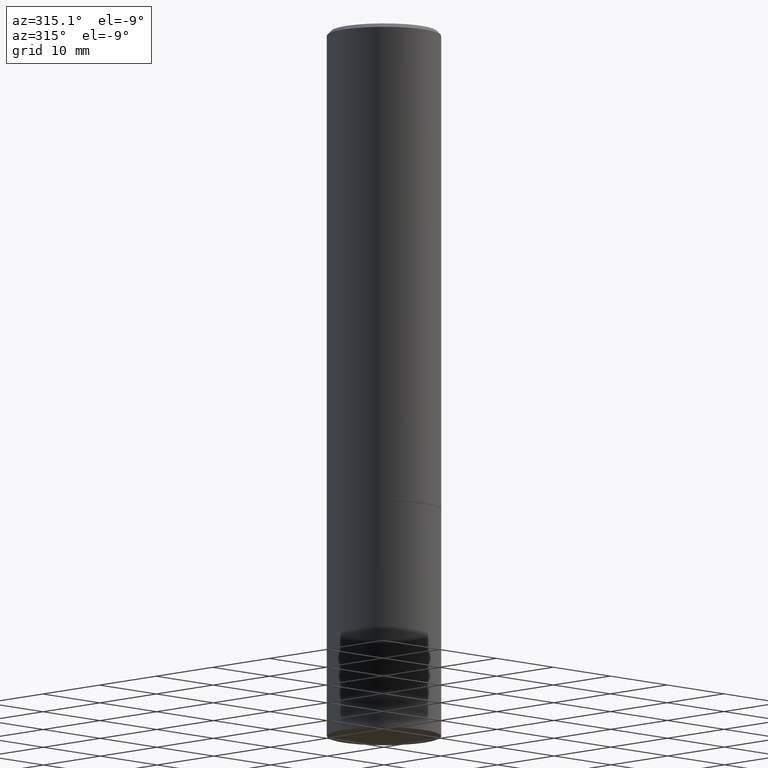
[diagram: clean part render]
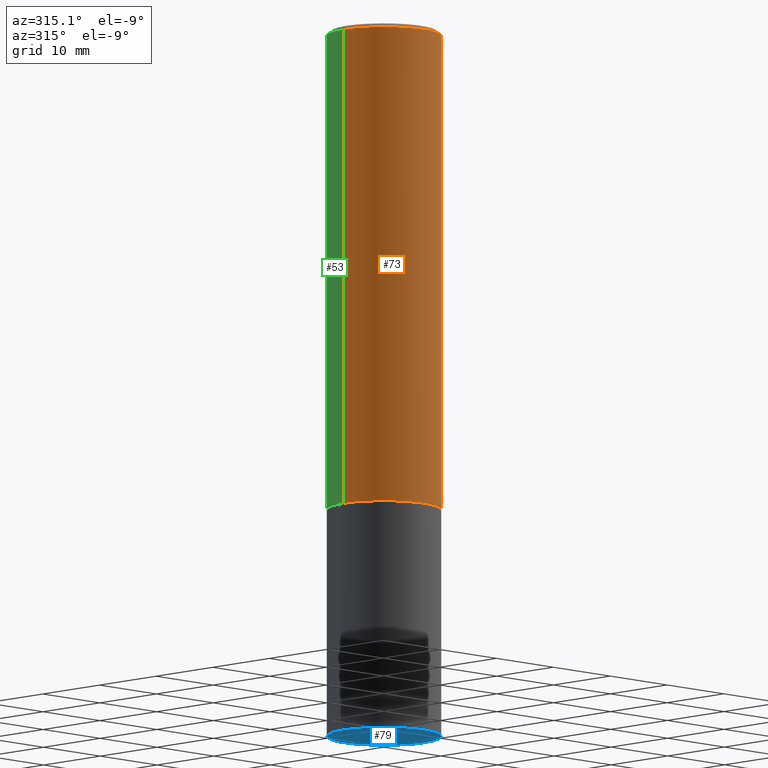
[diagram: same view with three faces highlighted in distinct colors, each labeled with its STEP entity id]
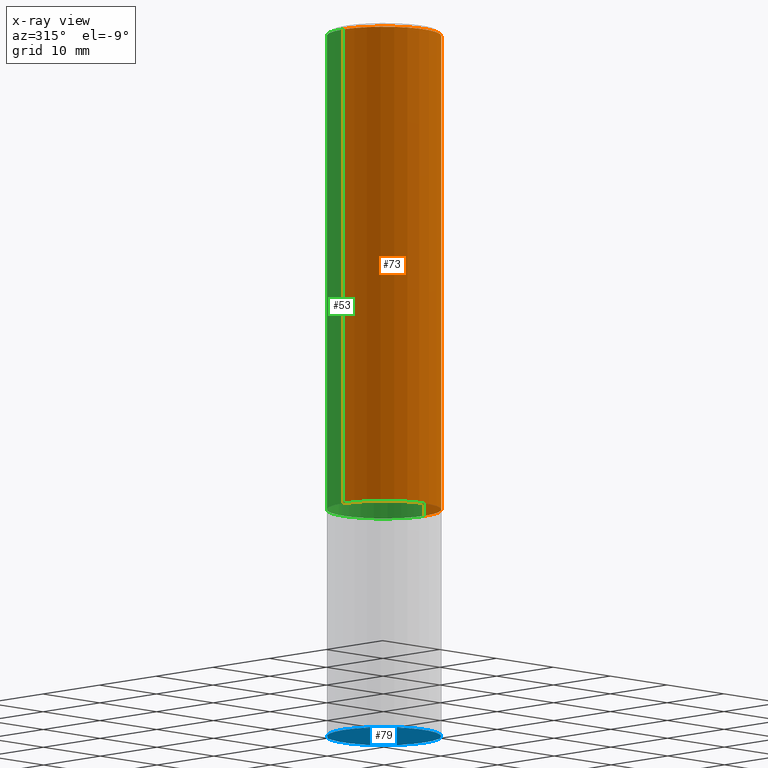
[diagram: x-ray of the same camera — body ghosted, the three highlighted faces saturated]
A machine part, auxiliary view with three faces highlighted in distinct colors.
The next image is the same camera in x-ray (body ghosted, the three faces saturated) — at least one of them is partly hidden behind the body in this view.
Their STEP definitions:

[orange] entity #73 — the highlighted cylindrical surface (partial cylindrical patch) has radius 7.1437 mm, axis along (-0, 0, 1).
#3 = DIRECTION ( 'NONE',  ( 1.000000000000000000, -6.982962677686266711E-15, 0.000000000000000000 ) ) ;
#11 = CARTESIAN_POINT ( 'NONE',  ( 5.805542945883512693E-29, -8.288776698413625533E-15, -2.373999999999999222 ) ) ;
#32 = AXIS2_PLACEMENT_3D ( 'NONE', #80, #86, #180 ) ;
#41 = DIRECTION ( 'NONE',  ( 1.000000000000000000, -6.982962677686269866E-15, 0.000000000000000000 ) ) ;
#52 = CIRCLE ( 'NONE', #159, 0.2812500000000000000 ) ;
#73 = ADVANCED_FACE ( 'NONE', ( #115 ), #264, .T. ) ;
#78 = EDGE_CURVE ( 'NONE', #309, #107, #242, .T. ) ;
#80 = CARTESIAN_POINT ( 'NONE',  ( 0.000000000000000000, 0.000000000000000000, 0.000000000000000000 ) ) ;
#82 = VECTOR ( 'NONE', #353, 39.37007874015748143 ) ;
#86 = DIRECTION ( 'NONE',  ( -2.445468806185136597E-29, 3.491481338843145583E-15, 1.000000000000000000 ) ) ;
#93 = CARTESIAN_POINT ( 'NONE',  ( 0.2812499999999998335, -1.963958253099261329E-15, 1.371424718192606171E-29 ) ) ;
#94 = CARTESIAN_POINT ( 'NONE',  ( -0.2812499999999996669, 1.894128626322397242E-15, -0.02000000000000005940 ) ) ;
#107 = VERTEX_POINT ( 'NONE', #336 ) ;
#114 = CIRCLE ( 'NONE', #120, 0.2812499999999996669 ) ;
#115 = FACE_OUTER_BOUND ( 'NONE', #163, .T. ) ;
#120 = AXIS2_PLACEMENT_3D ( 'NONE', #304, #239, #3 ) ;
#148 = LINE ( 'NONE', #273, #82 ) ;
#159 = AXIS2_PLACEMENT_3D ( 'NONE', #11, #210, #41 ) ;
#161 = EDGE_CURVE ( 'NONE', #267, #309, #52, .T. ) ;
#163 = EDGE_LOOP ( 'NONE', ( #272, #361, #255, #348 ) ) ;
#164 = EDGE_CURVE ( 'NONE', #267, #165, #148, .T. ) ;
#165 = VERTEX_POINT ( 'NONE', #94 ) ;
#180 = DIRECTION ( 'NONE',  ( 1.000000000000000000, -6.982962677686266711E-15, 4.876176775795935793E-29 ) ) ;
#210 = DIRECTION ( 'NONE',  ( -2.445468806185136597E-29, 3.491481338843145583E-15, 1.000000000000000000 ) ) ;
#217 = DIRECTION ( 'NONE',  ( -2.445468806185136877E-29, 3.491481338843145188E-15, 1.000000000000000000 ) ) ;
#230 = EDGE_CURVE ( 'NONE', #165, #107, #114, .T. ) ;
#239 = DIRECTION ( 'NONE',  ( -2.445468806185136597E-29, 3.491481338843145583E-15, 1.000000000000000000 ) ) ;
#242 = LINE ( 'NONE', #93, #279 ) ;
#255 = ORIENTED_EDGE ( 'NONE', *, *, #78, .T. ) ;
#264 = CYLINDRICAL_SURFACE ( 'NONE', #32, 0.2812499999999998335 ) ;
#267 = VERTEX_POINT ( 'NONE', #366 ) ;
#272 = ORIENTED_EDGE ( 'NONE', *, *, #164, .F. ) ;
#273 = CARTESIAN_POINT ( 'NONE',  ( -0.2812499999999998335, 1.998401444325280589E-15, -1.383450494134191428E-29 ) ) ;
#279 = VECTOR ( 'NONE', #217, 39.37007874015748143 ) ;
#304 = CARTESIAN_POINT ( 'NONE',  ( 4.890937612370288047E-31, -6.982962677686311331E-17, -0.02000000000000005940 ) ) ;
#309 = VERTEX_POINT ( 'NONE', #320 ) ;
#320 = CARTESIAN_POINT ( 'NONE',  ( 0.2812500000000000000, -1.025273495151288883E-14, -2.373999999999999222 ) ) ;
#336 = CARTESIAN_POINT ( 'NONE',  ( 0.2812499999999996669, -1.999344688650103789E-15, -0.02000000000000005940 ) ) ;
#348 = ORIENTED_EDGE ( 'NONE', *, *, #230, .F. ) ;
#353 = DIRECTION ( 'NONE',  ( -2.445468806185136877E-29, 3.491481338843145188E-15, 1.000000000000000000 ) ) ;
#361 = ORIENTED_EDGE ( 'NONE', *, *, #161, .T. ) ;
#366 = CARTESIAN_POINT ( 'NONE',  ( -0.2812500000000000000, -2.180901718269959487E-15, -2.373999999999999222 ) ) ;

[blue] entity #79 — the highlighted planar face has unit normal (0, -0, -1).
#51 = ORIENTED_EDGE ( 'NONE', *, *, #212, .F. ) ;
#79 = ADVANCED_FACE ( 'NONE', ( #121 ), #359, .T. ) ;
#84 = CARTESIAN_POINT ( 'NONE',  ( 8.559140821647976968E-29, -1.222018468595100934E-14, -3.500000000000000000 ) ) ;
#87 = DIRECTION ( 'NONE',  ( 1.000000000000000000, -6.982962677686269866E-15, 0.000000000000000000 ) ) ;
#97 = DIRECTION ( 'NONE',  ( -1.000000000000000000, 6.982962677686265922E-15, -4.876176775795935793E-29 ) ) ;
#101 = AXIS2_PLACEMENT_3D ( 'NONE', #351, #214, #330 ) ;
#121 = FACE_OUTER_BOUND ( 'NONE', #313, .T. ) ;
#194 = VERTEX_POINT ( 'NONE', #305 ) ;
#212 = EDGE_CURVE ( 'NONE', #283, #194, #286, .T. ) ;
#214 = DIRECTION ( 'NONE',  ( -2.445468806185136597E-29, 3.491481338843145583E-15, 1.000000000000000000 ) ) ;
#234 = DIRECTION ( 'NONE',  ( -2.445468806185136597E-29, 3.491481338843145583E-15, 1.000000000000000000 ) ) ;
#244 = AXIS2_PLACEMENT_3D ( 'NONE', #84, #234, #87 ) ;
#248 = ORIENTED_EDGE ( 'NONE', *, *, #316, .F. ) ;
#266 = DIRECTION ( 'NONE',  ( 2.438088387897960049E-29, -3.491481338843145188E-15, -1.000000000000000000 ) ) ;
#282 = AXIS2_PLACEMENT_3D ( 'NONE', #297, #266, #97 ) ;
#283 = VERTEX_POINT ( 'NONE', #339 ) ;
#286 = CIRCLE ( 'NONE', #101, 0.2812500000000000000 ) ;
#297 = CARTESIAN_POINT ( 'NONE',  ( 1.963958253099348104E-15, 0.2812499999999877875, -3.500000000000000888 ) ) ;
#305 = CARTESIAN_POINT ( 'NONE',  ( -0.2812500000000000000, -8.257824988526456379E-15, -3.500000000000000000 ) ) ;
#313 = EDGE_LOOP ( 'NONE', ( #51, #248 ) ) ;
#316 = EDGE_CURVE ( 'NONE', #194, #283, #354, .T. ) ;
#330 = DIRECTION ( 'NONE',  ( 1.000000000000000000, -6.982962677686269866E-15, 0.000000000000000000 ) ) ;
#339 = CARTESIAN_POINT ( 'NONE',  ( 0.2812500000000000000, -1.418414293905027264E-14, -3.500000000000000000 ) ) ;
#351 = CARTESIAN_POINT ( 'NONE',  ( 8.559140821647976968E-29, -1.222018468595100934E-14, -3.500000000000000000 ) ) ;
#354 = CIRCLE ( 'NONE', #244, 0.2812500000000000000 ) ;
#359 = PLANE ( 'NONE',  #282 ) ;

[green] entity #53 — the highlighted cylindrical surface (partial cylindrical patch) has radius 7.1437 mm, axis along (-0, 0, 1).
#4 = AXIS2_PLACEMENT_3D ( 'NONE', #233, #205, #292 ) ;
#18 = ORIENTED_EDGE ( 'NONE', *, *, #177, .T. ) ;
#21 = DIRECTION ( 'NONE',  ( 1.000000000000000000, -6.982962677686269866E-15, 0.000000000000000000 ) ) ;
#25 = ORIENTED_EDGE ( 'NONE', *, *, #78, .F. ) ;
#53 = ADVANCED_FACE ( 'NONE', ( #173 ), #288, .T. ) ;
#59 = CARTESIAN_POINT ( 'NONE',  ( 4.890937612370288047E-31, -6.982962677686311331E-17, -0.02000000000000005940 ) ) ;
#61 = DIRECTION ( 'NONE',  ( -2.445468806185136597E-29, 3.491481338843145583E-15, 1.000000000000000000 ) ) ;
#75 = CIRCLE ( 'NONE', #293, 0.2812499999999996669 ) ;
#78 = EDGE_CURVE ( 'NONE', #309, #107, #242, .T. ) ;
#82 = VECTOR ( 'NONE', #353, 39.37007874015748143 ) ;
#93 = CARTESIAN_POINT ( 'NONE',  ( 0.2812499999999998335, -1.963958253099261329E-15, 1.371424718192606171E-29 ) ) ;
#94 = CARTESIAN_POINT ( 'NONE',  ( -0.2812499999999996669, 1.894128626322397242E-15, -0.02000000000000005940 ) ) ;
#107 = VERTEX_POINT ( 'NONE', #336 ) ;
#110 = CIRCLE ( 'NONE', #349, 0.2812500000000000000 ) ;
#148 = LINE ( 'NONE', #273, #82 ) ;
#152 = DIRECTION ( 'NONE',  ( -2.445468806185136597E-29, 3.491481338843145583E-15, 1.000000000000000000 ) ) ;
#164 = EDGE_CURVE ( 'NONE', #267, #165, #148, .T. ) ;
#165 = VERTEX_POINT ( 'NONE', #94 ) ;
#173 = FACE_OUTER_BOUND ( 'NONE', #364, .T. ) ;
#175 = DIRECTION ( 'NONE',  ( 1.000000000000000000, -6.982962677686266711E-15, 0.000000000000000000 ) ) ;
#177 = EDGE_CURVE ( 'NONE', #309, #267, #110, .T. ) ;
#202 = ORIENTED_EDGE ( 'NONE', *, *, #164, .T. ) ;
#205 = DIRECTION ( 'NONE',  ( -2.445468806185136597E-29, 3.491481338843145583E-15, 1.000000000000000000 ) ) ;
#217 = DIRECTION ( 'NONE',  ( -2.445468806185136877E-29, 3.491481338843145188E-15, 1.000000000000000000 ) ) ;
#233 = CARTESIAN_POINT ( 'NONE',  ( 0.000000000000000000, 0.000000000000000000, 0.000000000000000000 ) ) ;
#236 = ORIENTED_EDGE ( 'NONE', *, *, #319, .F. ) ;
#242 = LINE ( 'NONE', #93, #279 ) ;
#267 = VERTEX_POINT ( 'NONE', #366 ) ;
#273 = CARTESIAN_POINT ( 'NONE',  ( -0.2812499999999998335, 1.998401444325280589E-15, -1.383450494134191428E-29 ) ) ;
#279 = VECTOR ( 'NONE', #217, 39.37007874015748143 ) ;
#288 = CYLINDRICAL_SURFACE ( 'NONE', #4, 0.2812499999999998335 ) ;
#292 = DIRECTION ( 'NONE',  ( 1.000000000000000000, -6.982962677686266711E-15, 4.876176775795935793E-29 ) ) ;
#293 = AXIS2_PLACEMENT_3D ( 'NONE', #59, #61, #175 ) ;
#301 = CARTESIAN_POINT ( 'NONE',  ( 5.805542945883512693E-29, -8.288776698413625533E-15, -2.373999999999999222 ) ) ;
#309 = VERTEX_POINT ( 'NONE', #320 ) ;
#319 = EDGE_CURVE ( 'NONE', #107, #165, #75, .T. ) ;
#320 = CARTESIAN_POINT ( 'NONE',  ( 0.2812500000000000000, -1.025273495151288883E-14, -2.373999999999999222 ) ) ;
#336 = CARTESIAN_POINT ( 'NONE',  ( 0.2812499999999996669, -1.999344688650103789E-15, -0.02000000000000005940 ) ) ;
#349 = AXIS2_PLACEMENT_3D ( 'NONE', #301, #152, #21 ) ;
#353 = DIRECTION ( 'NONE',  ( -2.445468806185136877E-29, 3.491481338843145188E-15, 1.000000000000000000 ) ) ;
#364 = EDGE_LOOP ( 'NONE', ( #18, #202, #236, #25 ) ) ;
#366 = CARTESIAN_POINT ( 'NONE',  ( -0.2812500000000000000, -2.180901718269959487E-15, -2.373999999999999222 ) ) ;